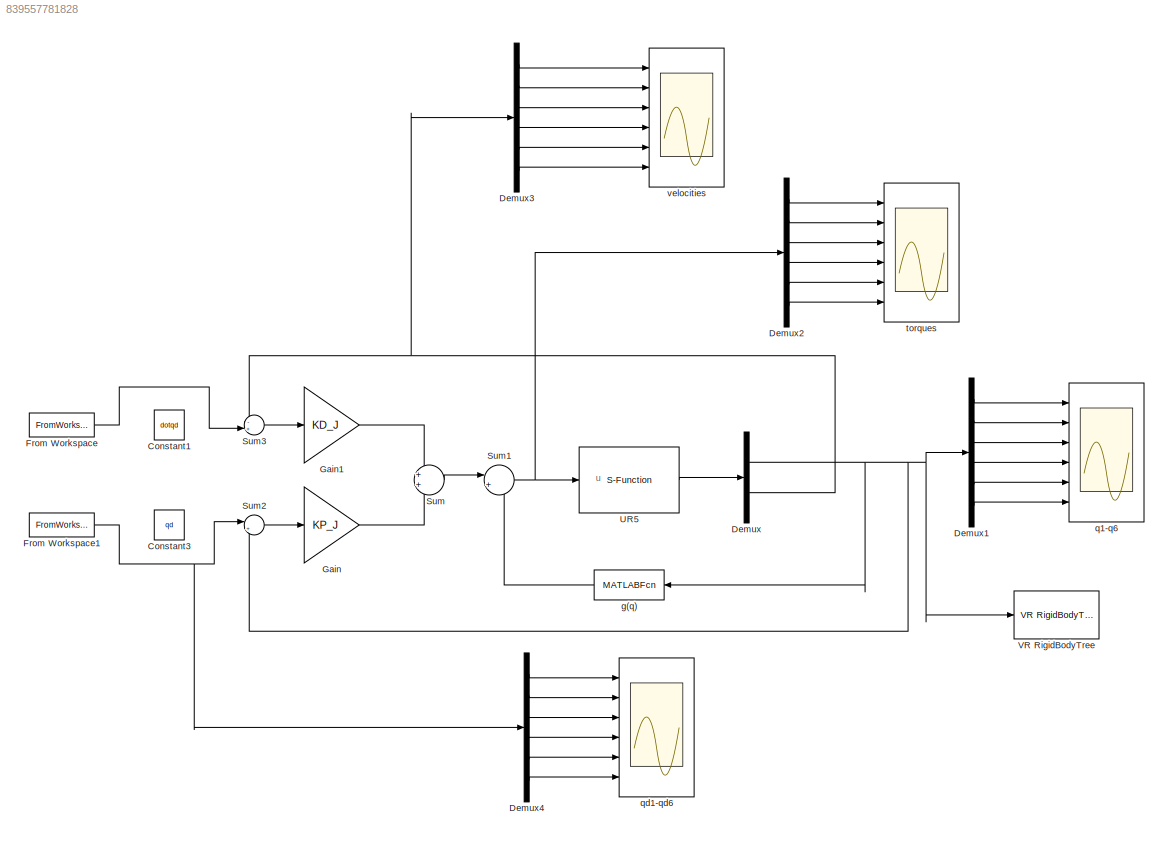
MODEL slx_839557781828
KIND model
CONFIG AbsTol = auto
CONFIG EnableMultiTasking = off
CONFIG FixedStep = auto
CONFIG MaxStep = auto
CONFIG MinStep = auto
CONFIG RelTol = 1e-3
CONFIG SampleTimeConstraint = Unconstrained
CONFIG SolverName = VariableStepAuto
CONFIG StartTime = 0.0
CONFIG StopTime = 10
BLOCK [Constant] Constant1
  Commented = on
  Value = dotqd
BLOCK [Constant] Constant3
  Commented = on
  Value = qd
BLOCK [Demux] Demux
  Outputs = 2
  Ports = [1, 2]
BLOCK [Demux] Demux1
  Outputs = dh.dof
  Ports = [1, 6]
BLOCK [Demux] Demux2
  Outputs = dh.dof
  Ports = [1, 6]
BLOCK [Demux] Demux3
  Outputs = dh.dof
  Ports = [1, 6]
BLOCK [Demux] Demux4
  Outputs = dh.dof
  Ports = [1, 6]
BLOCK [FromWorkspace] From Workspace
  VariableName = dotqd
BLOCK [FromWorkspace] From Workspace1
  VariableName = qd
BLOCK [Gain] Gain
  Gain = KP_J
  Multiplication = Matrix(K*u)
BLOCK [Gain] Gain1
  Gain = KD_J
  Multiplication = Matrix(K*u)
BLOCK [Sum] Sum
  Ports = [2, 1]
BLOCK [Sum] Sum1
  Inputs = |++
  Ports = [2, 1]
BLOCK [Sum] Sum2
  Inputs = |+-
  Ports = [2, 1]
BLOCK [Sum] Sum3
  Inputs = -+|
  Ports = [2, 1]
BLOCK [S-Function] UR5
  EnableBusSupport = off
  FunctionName = fwd_dyn_S_matrix
  Parameters = dh, he, gravity, q0, dotq0
  Ports = [1, 1]
  SFcnIsStateOwnerBlock = off
  SFunctionDeploymentMode = off
BLOCK [Reference] VR RigidBodyTree  REF=vrlib/VR RigidBodyTree
  Commented = on
  Ports = [1]
  SourceBlock = vrlib/VR RigidBodyTree
  SourceProductBaseCode = SL
  SourceType = VR RigidBodyTree
BLOCK [MATLABFcn] g(q)
  MATLABFcn = inv_dyn_recursive_NewtonEulero(dh,u,[0 0 0 0 0 0]', [0 0 0 0 0 0]',gravity)
  NameLocation = top
  Output1D = off
  OutputDimensions = [dh.dof 1]
  Ports = [1, 1]
BLOCK [Scope] q1-q6
  Floating = off
  NumInputPorts = 6
  Ports = [6]
  ScopeSpecificationString = Simulink.scopes.TimeScopeBlockCfg('CurrentConfiguration', extmgr.ConfigurationSet(extmgr.Configuration('Core','General UI',true),extmgr.Configuration('Core','Source UI',true),extmgr.Configuration('Sources','WiredSimulink',true,'DataLoggingVariableName','ScopeData2'),extmgr.Configuration('Visuals','Time Domain',true,'SerializedDisplays',{struct('MinYLimReal','-0.34484','MaxYLimReal','0.26121','YLab...<+4944ch>
BLOCK [Scope] qd1-qd6
  Floating = off
  NumInputPorts = 6
  Ports = [6]
  ScopeSpecificationString = Simulink.scopes.TimeScopeBlockCfg('CurrentConfiguration', extmgr.ConfigurationSet(extmgr.Configuration('Core','General UI',true),extmgr.Configuration('Core','Source UI',true),extmgr.Configuration('Sources','WiredSimulink',true,'DataLoggingVariableName','ScopeData1'),extmgr.Configuration('Visuals','Time Domain',true,'SerializedDisplays',{struct('MinYLimReal','-0.25','MaxYLimReal','0.25','YLabelReal...<+4920ch>
BLOCK [Scope] torques
  Floating = off
  NumInputPorts = 6
  Ports = [6]
  ScopeSpecificationString = Simulink.scopes.TimeScopeBlockCfg('CurrentConfiguration', extmgr.ConfigurationSet(extmgr.Configuration('Core','General UI',true),extmgr.Configuration('Core','Source UI',true),extmgr.Configuration('Sources','WiredSimulink',true,'DataLoggingVariableName','ScopeData1'),extmgr.Configuration('Visuals','Time Domain',true,'SerializedDisplays',{struct('MinYLimReal','-0.3095','MaxYLimReal','0.28316','YLabe...<+4943ch>
BLOCK [Scope] velocities
  Floating = off
  NumInputPorts = 6
  Ports = [6]
  ScopeSpecificationString = Simulink.scopes.TimeScopeBlockCfg('CurrentConfiguration', extmgr.ConfigurationSet(extmgr.Configuration('Core','General UI',true),extmgr.Configuration('Core','Source UI',true),extmgr.Configuration('Sources','WiredSimulink',true,'DataLoggingVariableName','ScopeData2'),extmgr.Configuration('Visuals','Time Domain',true,'SerializedDisplays',{struct('MinYLimReal','-0.16774','MaxYLimReal','0.06002','YLab...<+4943ch>
ANNOTATION (root): u
LINE Demux1:1 -> q1-q6:1
LINE Demux1:2 -> q1-q6:2
LINE Demux1:3 -> q1-q6:3
LINE Demux1:4 -> q1-q6:4
LINE Demux1:5 -> q1-q6:5
LINE Demux1:6 -> q1-q6:6
LINE Demux2:1 -> torques:1
LINE Demux2:2 -> torques:2
LINE Demux2:3 -> torques:3
LINE Demux2:4 -> torques:4
LINE Demux2:5 -> torques:5
LINE Demux2:6 -> torques:6
LINE Demux3:1 -> velocities:1
LINE Demux3:2 -> velocities:2
LINE Demux3:3 -> velocities:3
LINE Demux3:4 -> velocities:4
LINE Demux3:5 -> velocities:5
LINE Demux3:6 -> velocities:6
LINE Demux4:1 -> qd1-qd6:1
LINE Demux4:2 -> qd1-qd6:2
LINE Demux4:3 -> qd1-qd6:3
LINE Demux4:4 -> qd1-qd6:4
LINE Demux4:5 -> qd1-qd6:5
LINE Demux4:6 -> qd1-qd6:6
NET Demux:1 -> Demux1:1, Sum2:2, VR RigidBodyTree:1, g(q):1
NET Demux:2 -> Demux3:1, Sum3:1
NET From Workspace1:1 -> Demux4:1, Sum2:1
LINE From Workspace:1 -> Sum3:2
LINE Gain1:1 -> Sum:1
LINE Gain:1 -> Sum:2
NET Sum1:1 -> Demux2:1, UR5:1
LINE Sum2:1 -> Gain:1
LINE Sum3:1 -> Gain1:1
LINE Sum:1 -> Sum1:1
LINE UR5:1 -> Demux:1
LINE g(q):1 -> Sum1:2
note: NET lines group one-source signal fan-out (src -> all destinations, sorted); 1:1 wires keep LINE
